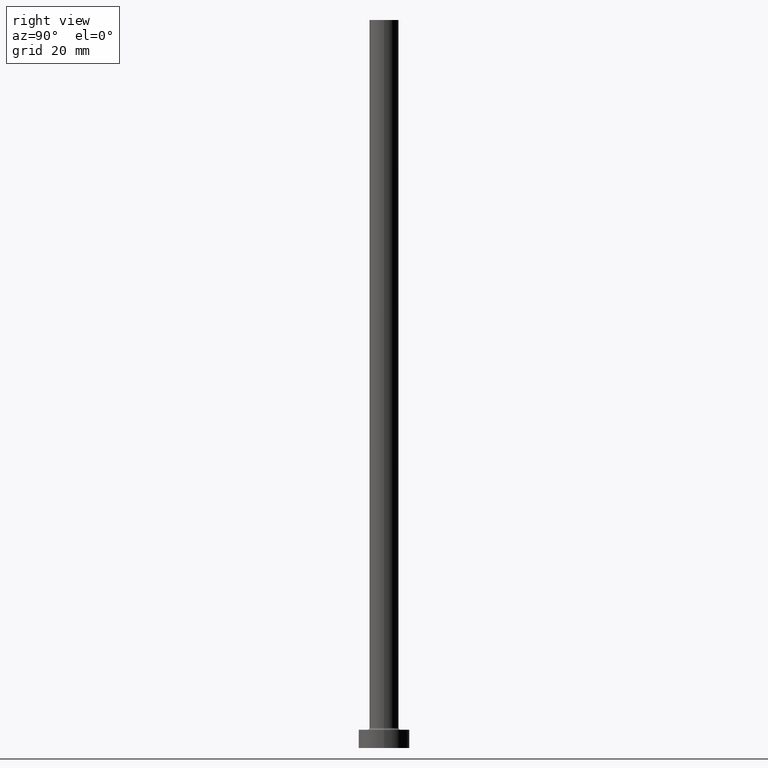
[diagram: clean part render]
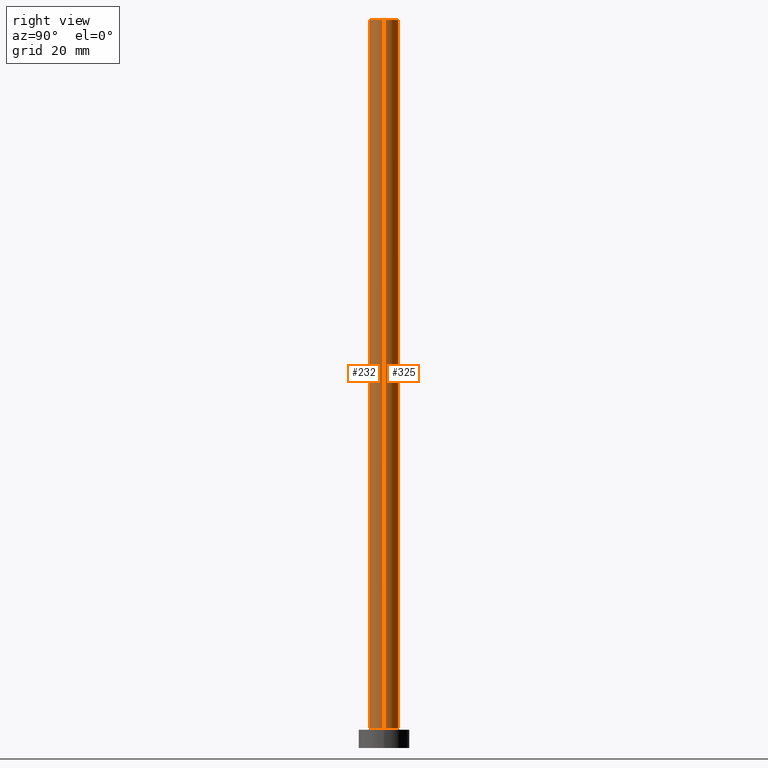
[diagram: same view with one multi-face feature highlighted, each face labeled with its STEP entity id]
A machine part, right view. The highlighted faces form ONE feature: a constant-radius fillet chain: 2 tangent blend faces with common blend radius 4 mm. The faces share edges in the B-rep.
Their STEP definitions:
[1] entity #232 (Cylinder):
#4 = VERTEX_POINT ( 'NONE', #275 ) ;
#11 = CARTESIAN_POINT ( 'NONE',  ( 0.000000000000000000, 0.000000000000000000, 5.500000000000005329 ) ) ;
#32 = ORIENTED_EDGE ( 'NONE', *, *, #115, .T. ) ;
#45 = CARTESIAN_POINT ( 'NONE',  ( 0.000000000000000000, 0.000000000000000000, 200.0000000000000000 ) ) ;
#46 = LINE ( 'NONE', #261, #203 ) ;
#49 = CIRCLE ( 'NONE', #312, 4.000000000000000000 ) ;
#62 = CARTESIAN_POINT ( 'NONE',  ( -4.000000000000000000, 0.000000000000000000, 200.0000000000000000 ) ) ;
#64 = ORIENTED_EDGE ( 'NONE', *, *, #438, .F. ) ;
#66 = FACE_OUTER_BOUND ( 'NONE', #291, .T. ) ;
#77 = AXIS2_PLACEMENT_3D ( 'NONE', #136, #287, #215 ) ;
#83 = DIRECTION ( 'NONE',  ( 0.000000000000000000, 0.000000000000000000, 1.000000000000000000 ) ) ;
#93 = AXIS2_PLACEMENT_3D ( 'NONE', #45, #83, #365 ) ;
#102 = ORIENTED_EDGE ( 'NONE', *, *, #119, .T. ) ;
#115 = EDGE_CURVE ( 'NONE', #220, #222, #424, .T. ) ;
#119 = EDGE_CURVE ( 'NONE', #222, #396, #49, .T. ) ;
#136 = CARTESIAN_POINT ( 'NONE',  ( 0.000000000000000000, 0.000000000000000000, 200.0000000000000000 ) ) ;
#203 = VECTOR ( 'NONE', #301, 1000.000000000000000 ) ;
#215 = DIRECTION ( 'NONE',  ( -1.000000000000000000, 0.000000000000000000, 0.000000000000000000 ) ) ;
#220 = VERTEX_POINT ( 'NONE', #62 ) ;
#222 = VERTEX_POINT ( 'NONE', #314 ) ;
#232 = ADVANCED_FACE ( 'NONE', ( #66 ), #242, .T. ) ;
#242 = CYLINDRICAL_SURFACE ( 'NONE', #77, 4.000000000000000000 ) ;
#251 = DIRECTION ( 'NONE',  ( 1.000000000000000000, 0.000000000000000000, 0.000000000000000000 ) ) ;
#256 = VECTOR ( 'NONE', #323, 1000.000000000000000 ) ;
#261 = CARTESIAN_POINT ( 'NONE',  ( 4.000000000000000000, 4.898587196589412829E-16, 200.0000000000000000 ) ) ;
#275 = CARTESIAN_POINT ( 'NONE',  ( 4.000000000000000000, 4.898587196589412829E-16, 200.0000000000000000 ) ) ;
#287 = DIRECTION ( 'NONE',  ( -0.000000000000000000, -0.000000000000000000, -1.000000000000000000 ) ) ;
#291 = EDGE_LOOP ( 'NONE', ( #364, #64, #32, #102 ) ) ;
#301 = DIRECTION ( 'NONE',  ( -0.000000000000000000, -0.000000000000000000, -1.000000000000000000 ) ) ;
#312 = AXIS2_PLACEMENT_3D ( 'NONE', #11, #370, #251 ) ;
#314 = CARTESIAN_POINT ( 'NONE',  ( -4.000000000000000000, 0.000000000000000000, 5.500000000000005329 ) ) ;
#316 = EDGE_CURVE ( 'NONE', #4, #396, #46, .T. ) ;
#323 = DIRECTION ( 'NONE',  ( -0.000000000000000000, -0.000000000000000000, -1.000000000000000000 ) ) ;
#364 = ORIENTED_EDGE ( 'NONE', *, *, #316, .F. ) ;
#365 = DIRECTION ( 'NONE',  ( 1.000000000000000000, 0.000000000000000000, 0.000000000000000000 ) ) ;
#370 = DIRECTION ( 'NONE',  ( 0.000000000000000000, 0.000000000000000000, 1.000000000000000000 ) ) ;
#395 = CARTESIAN_POINT ( 'NONE',  ( -4.000000000000000000, 0.000000000000000000, 200.0000000000000000 ) ) ;
#396 = VERTEX_POINT ( 'NONE', #397 ) ;
#397 = CARTESIAN_POINT ( 'NONE',  ( 4.000000000000000000, 4.898587196589412829E-16, 5.500000000000005329 ) ) ;
#400 = CIRCLE ( 'NONE', #93, 4.000000000000000000 ) ;
#424 = LINE ( 'NONE', #395, #256 ) ;
#438 = EDGE_CURVE ( 'NONE', #220, #4, #400, .T. ) ;
[2] entity #325 (Cylinder):
#4 = VERTEX_POINT ( 'NONE', #275 ) ;
#39 = EDGE_LOOP ( 'NONE', ( #147, #190, #336, #123 ) ) ;
#46 = LINE ( 'NONE', #261, #203 ) ;
#51 = CYLINDRICAL_SURFACE ( 'NONE', #455, 4.000000000000000000 ) ;
#62 = CARTESIAN_POINT ( 'NONE',  ( -4.000000000000000000, 0.000000000000000000, 200.0000000000000000 ) ) ;
#88 = AXIS2_PLACEMENT_3D ( 'NONE', #285, #111, #145 ) ;
#108 = EDGE_CURVE ( 'NONE', #4, #220, #175, .T. ) ;
#111 = DIRECTION ( 'NONE',  ( 0.000000000000000000, 0.000000000000000000, 1.000000000000000000 ) ) ;
#115 = EDGE_CURVE ( 'NONE', #220, #222, #424, .T. ) ;
#123 = ORIENTED_EDGE ( 'NONE', *, *, #115, .F. ) ;
#145 = DIRECTION ( 'NONE',  ( 1.000000000000000000, 0.000000000000000000, 0.000000000000000000 ) ) ;
#147 = ORIENTED_EDGE ( 'NONE', *, *, #108, .F. ) ;
#175 = CIRCLE ( 'NONE', #88, 4.000000000000000000 ) ;
#190 = ORIENTED_EDGE ( 'NONE', *, *, #316, .T. ) ;
#202 = CARTESIAN_POINT ( 'NONE',  ( 0.000000000000000000, 0.000000000000000000, 200.0000000000000000 ) ) ;
#203 = VECTOR ( 'NONE', #301, 1000.000000000000000 ) ;
#206 = DIRECTION ( 'NONE',  ( 1.000000000000000000, 0.000000000000000000, 0.000000000000000000 ) ) ;
#220 = VERTEX_POINT ( 'NONE', #62 ) ;
#222 = VERTEX_POINT ( 'NONE', #314 ) ;
#255 = DIRECTION ( 'NONE',  ( -0.000000000000000000, -0.000000000000000000, -1.000000000000000000 ) ) ;
#256 = VECTOR ( 'NONE', #323, 1000.000000000000000 ) ;
#261 = CARTESIAN_POINT ( 'NONE',  ( 4.000000000000000000, 4.898587196589412829E-16, 200.0000000000000000 ) ) ;
#275 = CARTESIAN_POINT ( 'NONE',  ( 4.000000000000000000, 4.898587196589412829E-16, 200.0000000000000000 ) ) ;
#285 = CARTESIAN_POINT ( 'NONE',  ( 0.000000000000000000, 0.000000000000000000, 200.0000000000000000 ) ) ;
#301 = DIRECTION ( 'NONE',  ( -0.000000000000000000, -0.000000000000000000, -1.000000000000000000 ) ) ;
#306 = CARTESIAN_POINT ( 'NONE',  ( 0.000000000000000000, 0.000000000000000000, 5.500000000000005329 ) ) ;
#314 = CARTESIAN_POINT ( 'NONE',  ( -4.000000000000000000, 0.000000000000000000, 5.500000000000005329 ) ) ;
#316 = EDGE_CURVE ( 'NONE', #4, #396, #46, .T. ) ;
#323 = DIRECTION ( 'NONE',  ( -0.000000000000000000, -0.000000000000000000, -1.000000000000000000 ) ) ;
#325 = ADVANCED_FACE ( 'NONE', ( #437 ), #51, .T. ) ;
#335 = DIRECTION ( 'NONE',  ( -1.000000000000000000, 0.000000000000000000, 0.000000000000000000 ) ) ;
#336 = ORIENTED_EDGE ( 'NONE', *, *, #347, .T. ) ;
#343 = AXIS2_PLACEMENT_3D ( 'NONE', #306, #409, #206 ) ;
#347 = EDGE_CURVE ( 'NONE', #396, #222, #399, .T. ) ;
#395 = CARTESIAN_POINT ( 'NONE',  ( -4.000000000000000000, 0.000000000000000000, 200.0000000000000000 ) ) ;
#396 = VERTEX_POINT ( 'NONE', #397 ) ;
#397 = CARTESIAN_POINT ( 'NONE',  ( 4.000000000000000000, 4.898587196589412829E-16, 5.500000000000005329 ) ) ;
#399 = CIRCLE ( 'NONE', #343, 4.000000000000000000 ) ;
#409 = DIRECTION ( 'NONE',  ( 0.000000000000000000, 0.000000000000000000, 1.000000000000000000 ) ) ;
#424 = LINE ( 'NONE', #395, #256 ) ;
#437 = FACE_OUTER_BOUND ( 'NONE', #39, .T. ) ;
#455 = AXIS2_PLACEMENT_3D ( 'NONE', #202, #255, #335 ) ;